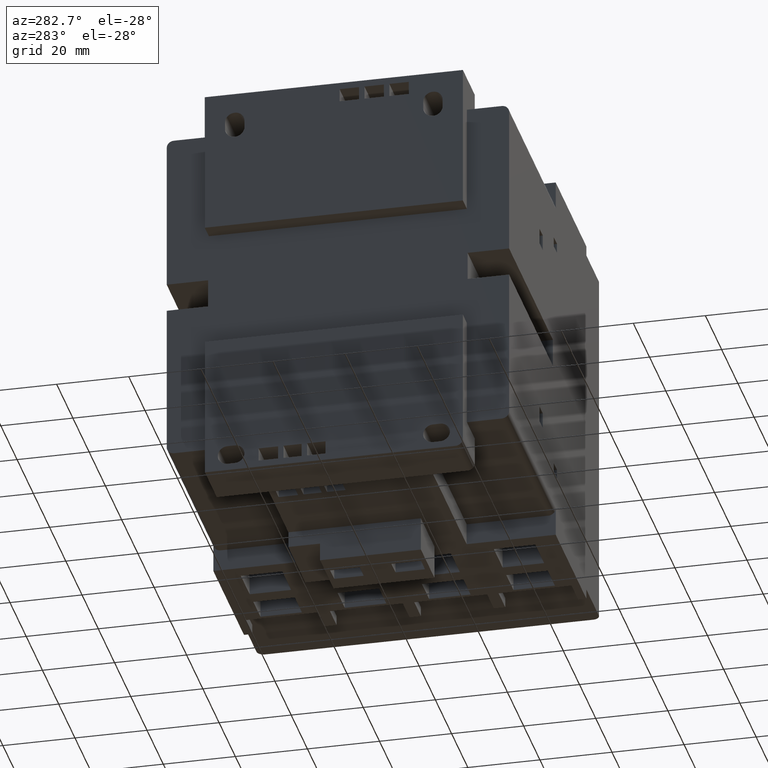
[diagram: clean part render]
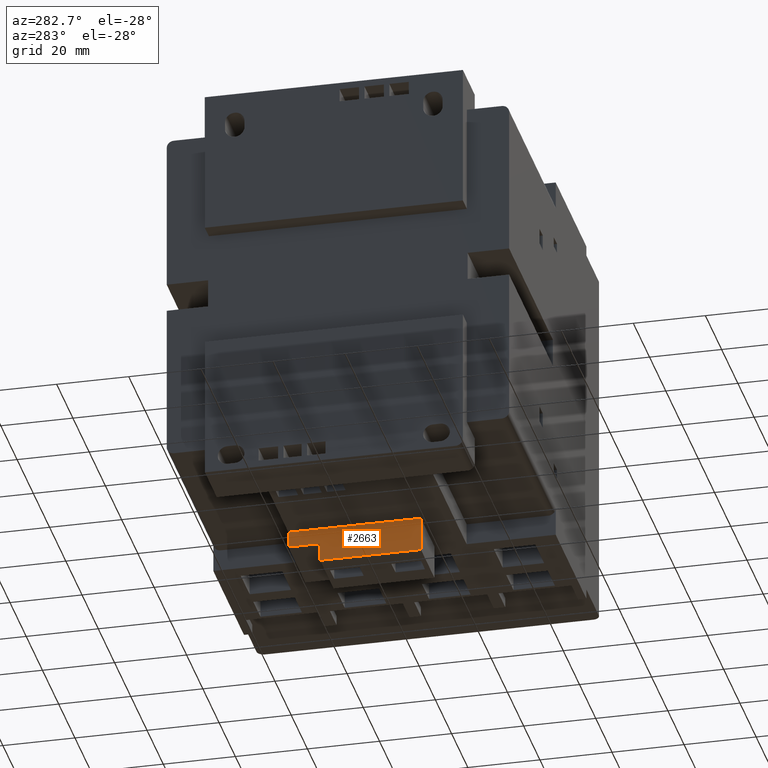
[diagram: same view with one face highlighted and labeled with its STEP entity id]
A machine part, auxiliary view. The second image highlights one B-rep face of the part: STEP entity #2663.
In plain terms, the highlighted planar face has unit normal (1, -0, -0).
Its self-contained STEP definition (entity closure, byte-faithful):
#2663=ADVANCED_FACE('',(#3455),#3081,.F.);
#3081=PLANE('',#11028);
#3455=FACE_OUTER_BOUND('',#3948,.T.);
#3948=EDGE_LOOP('',(#5505,#5506,#5507,#5508,#5509,#5510));
#5505=ORIENTED_EDGE('',*,*,#7271,.T.);
#5506=ORIENTED_EDGE('',*,*,#7971,.F.);
#5507=ORIENTED_EDGE('',*,*,#7972,.F.);
#5508=ORIENTED_EDGE('',*,*,#7148,.F.);
#5509=ORIENTED_EDGE('',*,*,#7604,.F.);
#5510=ORIENTED_EDGE('',*,*,#7970,.T.);
#6393=VERTEX_POINT('',#13304);
#6395=VERTEX_POINT('',#13308);
#6509=VERTEX_POINT('',#13556);
#6510=VERTEX_POINT('',#13558);
#6819=VERTEX_POINT('',#14218);
#7024=VERTEX_POINT('',#14987);
#7148=EDGE_CURVE('',#6395,#6393,#8266,.T.);
#7271=EDGE_CURVE('',#6510,#6509,#8372,.T.);
#7604=EDGE_CURVE('',#6819,#6395,#8676,.T.);
#7970=EDGE_CURVE('',#6819,#6510,#9030,.T.);
#7971=EDGE_CURVE('',#7024,#6509,#9031,.T.);
#7972=EDGE_CURVE('',#6393,#7024,#9032,.T.);
#8266=LINE('',#13309,#9312);
#8372=LINE('',#13557,#9418);
#8676=LINE('',#14219,#9722);
#9030=LINE('',#14984,#10076);
#9031=LINE('',#14986,#10077);
#9032=LINE('',#14988,#10078);
#9312=VECTOR('',#11257,1.);
#9418=VECTOR('',#11419,1.);
#9722=VECTOR('',#11819,1.);
#10076=VECTOR('',#12587,1.);
#10077=VECTOR('',#12590,1.);
#10078=VECTOR('',#12591,1.);
#11028=AXIS2_PLACEMENT_3D('',#14989,#12592,#12593);
#11257=DIRECTION('',(0.,-1.,-3.08258280937682E-017));
#11419=DIRECTION('',(-1.,0.,2.47817639425258E-016));
#11819=DIRECTION('',(-1.,0.,2.47817639425258E-016));
#12587=DIRECTION('',(0.,-1.,-3.08258280937682E-017));
#12590=DIRECTION('',(0.,-1.,-3.08258280937682E-017));
#12591=DIRECTION('',(-1.,0.,0.));
#12592=DIRECTION('',(2.47817639425258E-016,-3.08258280937682E-017,1.));
#12593=DIRECTION('',(1.,0.,-2.4980018054066E-016));
#13304=CARTESIAN_POINT('',(-14.,58.5,40.1000000000094));
#13308=CARTESIAN_POINT('',(-14.,63.6,40.1000000000094));
#13309=CARTESIAN_POINT('',(-14.,63.6,40.1000000000094));
#13556=CARTESIAN_POINT('',(-22.8,54.,40.1000000000094));
#13557=CARTESIAN_POINT('',(14.,54.,40.1000000000094));
#13558=CARTESIAN_POINT('',(14.,54.,40.1000000000094));
#14218=CARTESIAN_POINT('',(14.,63.6,40.1000000000094));
#14219=CARTESIAN_POINT('',(14.,63.6,40.1000000000094));
#14984=CARTESIAN_POINT('',(14.,63.6,40.1000000000094));
#14986=CARTESIAN_POINT('',(-22.8,58.5,40.1000000000094));
#14987=CARTESIAN_POINT('',(-22.8,58.5,40.1000000000094));
#14988=CARTESIAN_POINT('',(-14.,58.5,40.1000000000094));
#14989=CARTESIAN_POINT('',(14.,63.6,40.1000000000094));